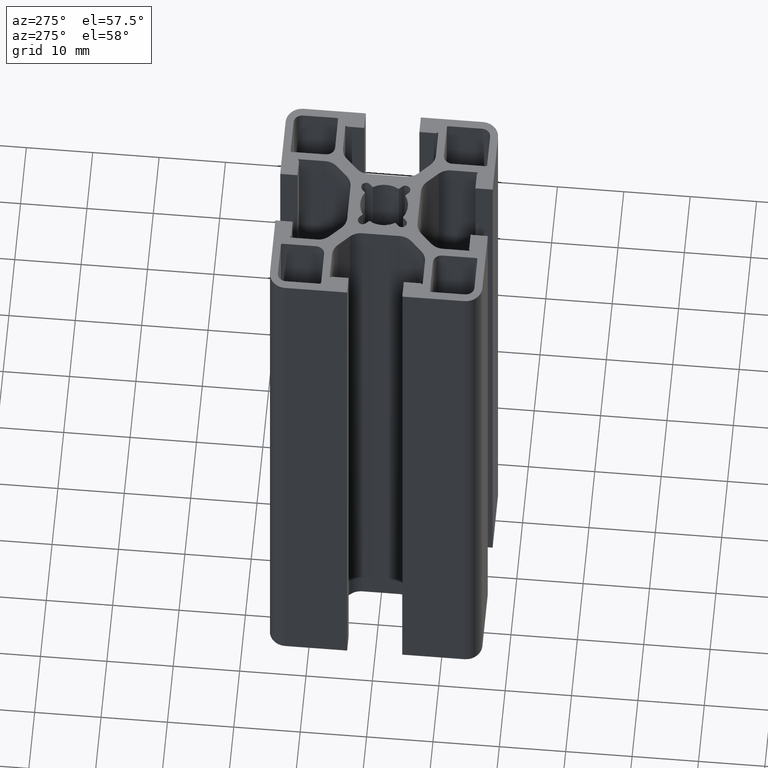
[diagram: clean part render]
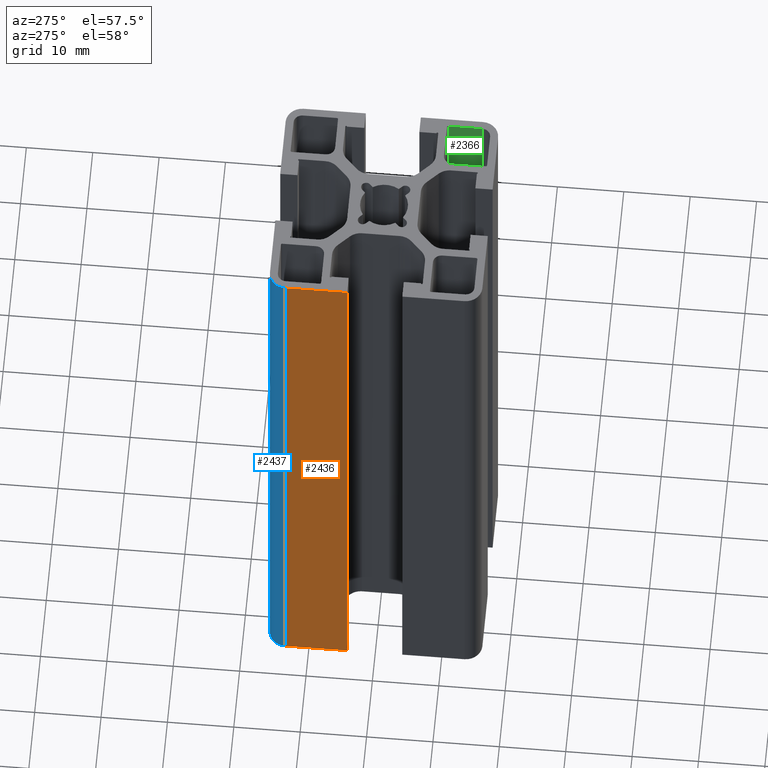
[diagram: same view with three faces highlighted in distinct colors, each labeled with its STEP entity id]
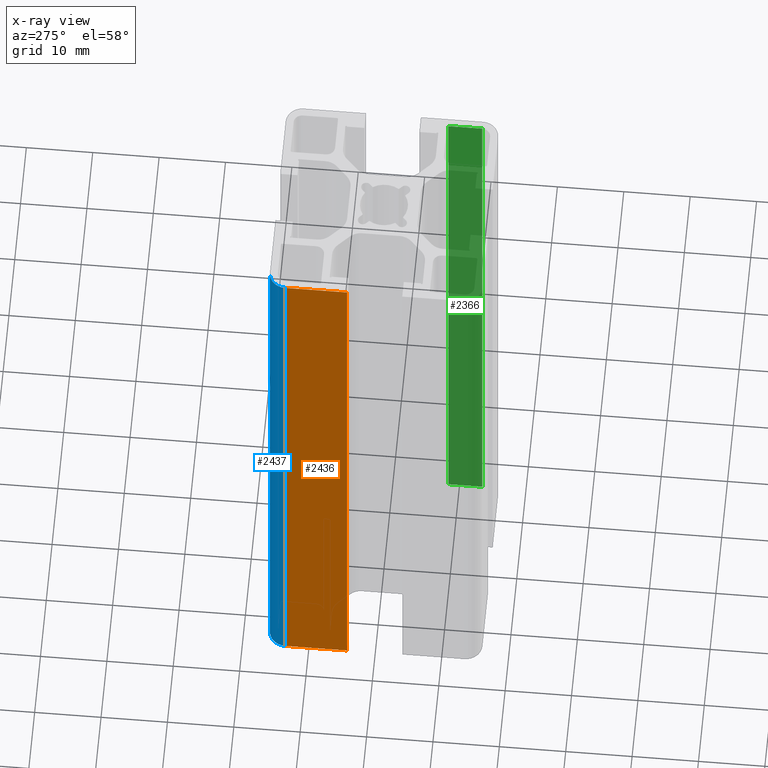
[diagram: x-ray of the same camera — body ghosted, the three highlighted faces saturated]
A machine part, auxiliary view with three faces highlighted in distinct colors.
The next image is the same camera in x-ray (body ghosted, the three faces saturated) — at least one of them is partly hidden behind the body in this view.
Their STEP definitions:

[orange] entity #2436 — the highlighted planar face has unit normal (-1, 0, 0).
#280=FACE_OUTER_BOUND('',#402,.T.);
#402=EDGE_LOOP('',(#1943,#1944,#1945,#1946));
#644=LINE('',#3994,#900);
#645=LINE('',#3997,#901);
#646=LINE('',#3999,#902);
#647=LINE('',#4000,#903);
#900=VECTOR('',#3272,100.);
#901=VECTOR('',#3275,9.34999650000021);
#902=VECTOR('',#3276,9.34999650000021);
#903=VECTOR('',#3277,100.);
#1145=VERTEX_POINT('',#3990);
#1146=VERTEX_POINT('',#3992);
#1147=VERTEX_POINT('',#3996);
#1148=VERTEX_POINT('',#3998);
#1484=EDGE_CURVE('',#1145,#1146,#644,.T.);
#1485=EDGE_CURVE('',#1147,#1145,#645,.T.);
#1486=EDGE_CURVE('',#1148,#1146,#646,.T.);
#1487=EDGE_CURVE('',#1147,#1148,#647,.T.);
#1943=ORIENTED_EDGE('',*,*,#1485,.T.);
#1944=ORIENTED_EDGE('',*,*,#1484,.T.);
#1945=ORIENTED_EDGE('',*,*,#1486,.F.);
#1946=ORIENTED_EDGE('',*,*,#1487,.F.);
#2322=PLANE('',#2648);
#2436=ADVANCED_FACE('',(#280),#2322,.T.);
#2648=AXIS2_PLACEMENT_3D('',#3995,#3273,#3274);
#3272=DIRECTION('',(0.,0.,1.));
#3273=DIRECTION('center_axis',(-0.999999999999977,2.13903815436992E-7,0.));
#3274=DIRECTION('ref_axis',(-2.13903815549088E-7,-0.999999999999977,0.));
#3275=DIRECTION('',(-2.13903815436992E-7,-0.999999999999977,0.));
#3276=DIRECTION('',(-2.13903815436992E-7,-0.999999999999977,0.));
#3277=DIRECTION('',(0.,0.,1.));
#3990=CARTESIAN_POINT('',(-16.0000056639,4.14999983609997,0.));
#3992=CARTESIAN_POINT('',(-16.0000056639,4.14999983609997,100.));
#3994=CARTESIAN_POINT('',(-16.0000056639,4.14999983609997,0.));
#3995=CARTESIAN_POINT('Origin',(-16.0000036639001,13.4999963361,0.));
#3996=CARTESIAN_POINT('',(-16.0000036639001,13.4999963361,0.));
#3997=CARTESIAN_POINT('',(-16.0000036639001,13.4999963361,0.));
#3998=CARTESIAN_POINT('',(-16.0000036639001,13.4999963361,100.));
#3999=CARTESIAN_POINT('',(-16.0000036639001,13.4999963361,100.));
#4000=CARTESIAN_POINT('',(-16.0000036639001,13.4999963361,0.));

[blue] entity #2437 — the highlighted cylindrical surface (edge-blend (fillet) strip) has radius 2.5 mm, axis along (0, 0, 1).
#113=CIRCLE('',#2650,2.5);
#114=CIRCLE('',#2651,2.5);
#173=CYLINDRICAL_SURFACE('',#2649,2.5);
#281=FACE_OUTER_BOUND('',#403,.T.);
#403=EDGE_LOOP('',(#1947,#1948,#1949,#1950));
#647=LINE('',#4000,#903);
#648=LINE('',#4006,#904);
#903=VECTOR('',#3277,100.);
#904=VECTOR('',#3284,100.);
#1147=VERTEX_POINT('',#3996);
#1148=VERTEX_POINT('',#3998);
#1149=VERTEX_POINT('',#4002);
#1150=VERTEX_POINT('',#4004);
#1487=EDGE_CURVE('',#1147,#1148,#647,.T.);
#1488=EDGE_CURVE('',#1149,#1147,#113,.T.);
#1489=EDGE_CURVE('',#1150,#1148,#114,.T.);
#1490=EDGE_CURVE('',#1149,#1150,#648,.T.);
#1947=ORIENTED_EDGE('',*,*,#1488,.T.);
#1948=ORIENTED_EDGE('',*,*,#1487,.T.);
#1949=ORIENTED_EDGE('',*,*,#1489,.F.);
#1950=ORIENTED_EDGE('',*,*,#1490,.F.);
#2437=ADVANCED_FACE('',(#281),#173,.T.);
#2649=AXIS2_PLACEMENT_3D('',#4001,#3278,#3279);
#2650=AXIS2_PLACEMENT_3D('',#4003,#3280,#3281);
#2651=AXIS2_PLACEMENT_3D('',#4005,#3282,#3283);
#3277=DIRECTION('',(0.,0.,1.));
#3278=DIRECTION('center_axis',(0.,0.,1.));
#3279=DIRECTION('ref_axis',(-7.10542735760085E-15,1.,0.));
#3280=DIRECTION('center_axis',(0.,0.,1.));
#3281=DIRECTION('ref_axis',(-7.10542735760085E-15,1.,0.));
#3282=DIRECTION('center_axis',(0.,0.,1.));
#3283=DIRECTION('ref_axis',(-7.10542735760085E-15,1.,0.));
#3284=DIRECTION('',(0.,0.,1.));
#3996=CARTESIAN_POINT('',(-16.0000036639001,13.4999963361,0.));
#3998=CARTESIAN_POINT('',(-16.0000036639001,13.4999963361,100.));
#4000=CARTESIAN_POINT('',(-16.0000036639001,13.4999963361,0.));
#4001=CARTESIAN_POINT('Origin',(-13.5000036639,13.4999963361,0.));
#4002=CARTESIAN_POINT('',(-13.5000036639,15.9999963361,0.));
#4003=CARTESIAN_POINT('Origin',(-13.5000036639,13.4999963361,0.));
#4004=CARTESIAN_POINT('',(-13.5000036639,15.9999963361,100.));
#4005=CARTESIAN_POINT('Origin',(-13.5000036639,13.4999963361,100.));
#4006=CARTESIAN_POINT('',(-13.5000036639,15.9999963361,0.));

[green] entity #2366 — the highlighted planar face has unit normal (1, 0, 0).
#210=FACE_OUTER_BOUND('',#332,.T.);
#332=EDGE_LOOP('',(#1663,#1664,#1665,#1666));
#492=LINE('',#3573,#748);
#493=LINE('',#3577,#749);
#494=LINE('',#3579,#750);
#495=LINE('',#3580,#751);
#748=VECTOR('',#2862,100.);
#749=VECTOR('',#2867,5.1);
#750=VECTOR('',#2868,100.);
#751=VECTOR('',#2869,5.1);
#1005=VERTEX_POINT('',#3570);
#1006=VERTEX_POINT('',#3572);
#1007=VERTEX_POINT('',#3576);
#1008=VERTEX_POINT('',#3578);
#1273=EDGE_CURVE('',#1005,#1006,#492,.T.);
#1275=EDGE_CURVE('',#1007,#1005,#493,.T.);
#1276=EDGE_CURVE('',#1007,#1008,#494,.T.);
#1277=EDGE_CURVE('',#1006,#1008,#495,.T.);
#1663=ORIENTED_EDGE('',*,*,#1275,.F.);
#1664=ORIENTED_EDGE('',*,*,#1276,.T.);
#1665=ORIENTED_EDGE('',*,*,#1277,.F.);
#1666=ORIENTED_EDGE('',*,*,#1273,.F.);
#2281=PLANE('',#2520);
#2366=ADVANCED_FACE('',(#210),#2281,.F.);
#2520=AXIS2_PLACEMENT_3D('',#3575,#2865,#2866);
#2862=DIRECTION('',(0.,0.,1.));
#2865=DIRECTION('center_axis',(1.,0.,0.));
#2866=DIRECTION('ref_axis',(0.,1.,0.));
#2867=DIRECTION('',(0.,1.,0.));
#2868=DIRECTION('',(0.,0.,1.));
#2869=DIRECTION('',(0.,-1.,0.));
#3570=CARTESIAN_POINT('',(14.7999963361,-8.40000366390004,0.));
#3572=CARTESIAN_POINT('',(14.7999963361,-8.40000366390004,100.));
#3573=CARTESIAN_POINT('',(14.7999963361,-8.40000366390004,0.));
#3575=CARTESIAN_POINT('Origin',(14.7999963361,-13.5000036639,0.));
#3576=CARTESIAN_POINT('',(14.7999963361,-13.5000036639,0.));
#3577=CARTESIAN_POINT('',(14.7999963361,-6.75000304397471,0.));
#3578=CARTESIAN_POINT('',(14.7999963361,-13.5000036639,100.));
#3579=CARTESIAN_POINT('',(14.7999963361,-13.5000036639,0.));
#3580=CARTESIAN_POINT('',(14.7999963361,-6.75000304397471,100.));